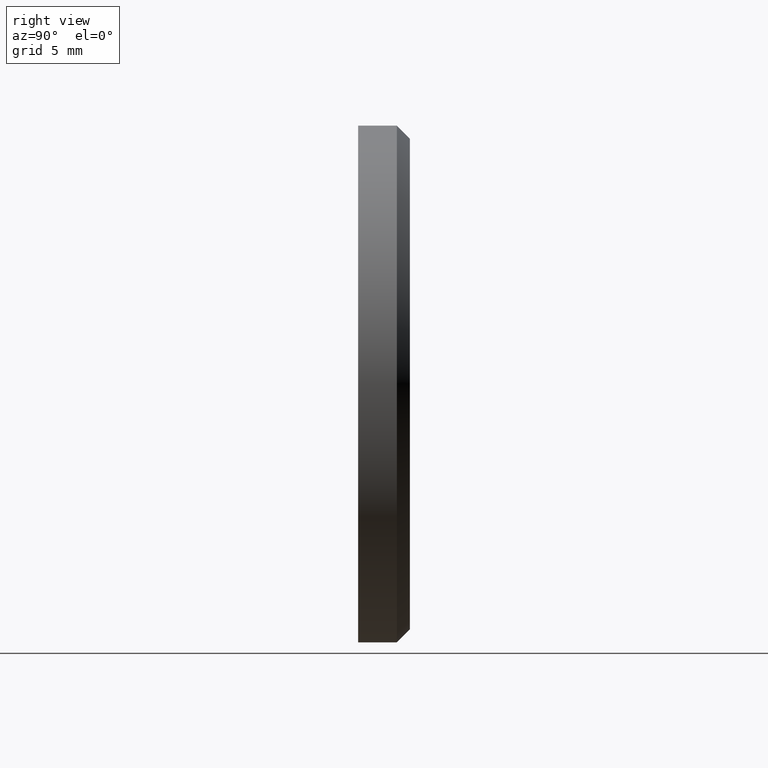
[diagram: clean part render]
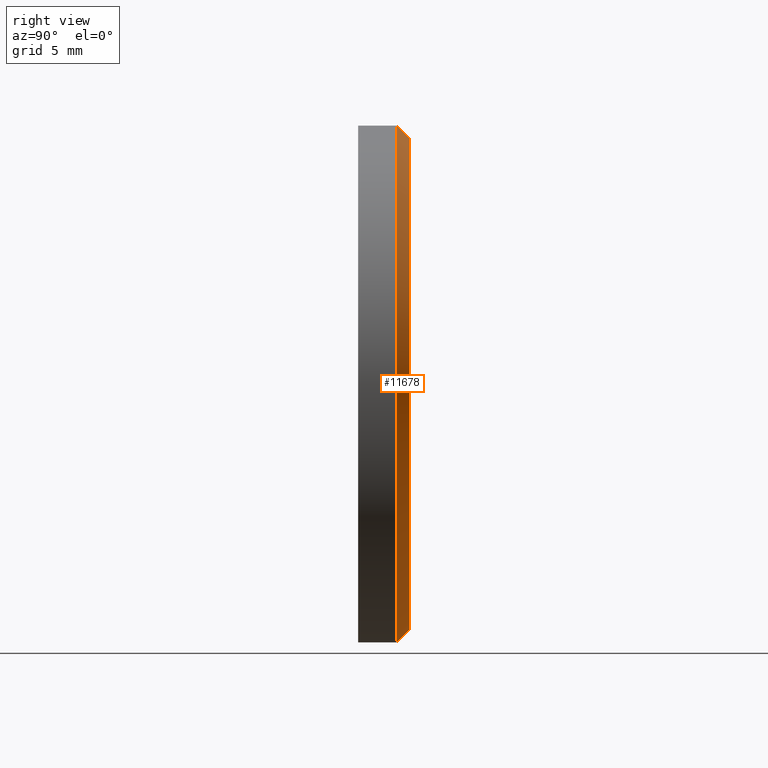
[diagram: same view with one face highlighted and labeled with its STEP entity id]
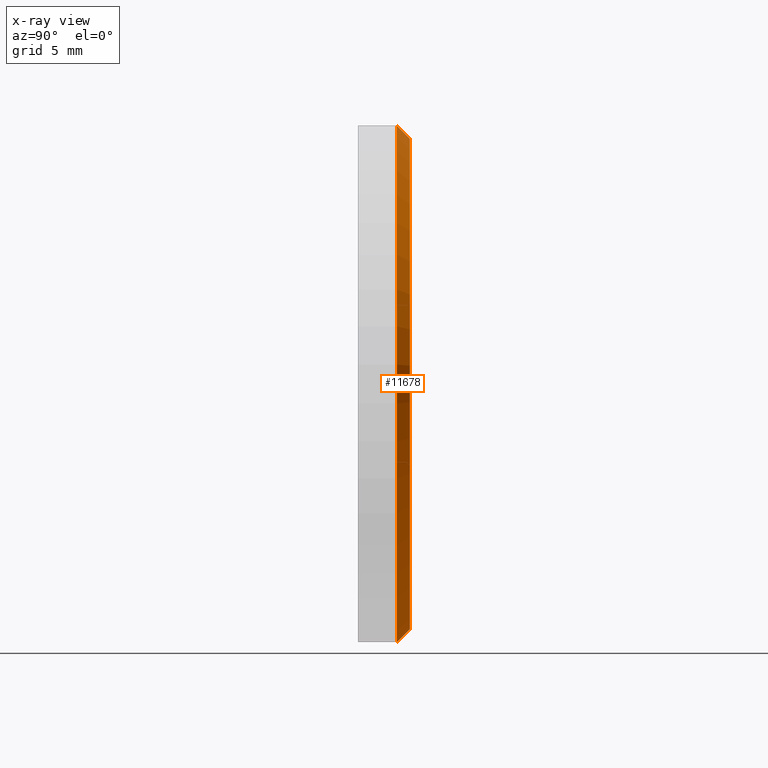
[diagram: x-ray of the same camera — body ghosted, the highlighted face saturated]
A machine part, right view. The second image highlights one B-rep face of the part: STEP entity #11678.
The next image is the same camera in x-ray: the body ghosted, the highlighted face saturated — about 0% of this face is hidden behind the body in this view.
In plain terms, the highlighted conical surface has half-angle 45 deg.
Its self-contained STEP definition (entity closure, byte-faithful):
#1484 = EDGE_CURVE ( 'NONE', #6207, #3976, #10006, .T. ) ;
#1502 = DIRECTION ( 'NONE',  ( 8.659560562354904508E-17, -0.7071067811865500152, 0.7071067811865451302 ) ) ;
#1595 = CARTESIAN_POINT ( 'NONE',  ( 0.000000000000000000, 4.000000000000000000, -19.00000000000001066 ) ) ;
#3976 = VERTEX_POINT ( 'NONE', #12292 ) ;
#4174 = ORIENTED_EDGE ( 'NONE', *, *, #13408, .F. ) ;
#4951 = ORIENTED_EDGE ( 'NONE', *, *, #13900, .F. ) ;
#5724 = DIRECTION ( 'NONE',  ( 0.000000000000000000, -1.000000000000000000, 0.000000000000000000 ) ) ;
#5757 = VECTOR ( 'NONE', #11580, 1000.000000000000114 ) ;
#5774 = AXIS2_PLACEMENT_3D ( 'NONE', #11754, #8324, #11701 ) ;
#5888 = DIRECTION ( 'NONE',  ( 0.000000000000000000, -1.000000000000000000, 0.000000000000000000 ) ) ;
#5932 = CARTESIAN_POINT ( 'NONE',  ( 0.000000000000000000, 3.000000000000002665, 0.000000000000000000 ) ) ;
#6029 = DIRECTION ( 'NONE',  ( 0.000000000000000000, 0.000000000000000000, 1.000000000000000000 ) ) ;
#6207 = VERTEX_POINT ( 'NONE', #11178 ) ;
#7228 = CARTESIAN_POINT ( 'NONE',  ( 2.326828918379972548E-15, 4.000000000000000000, 19.00000000000001066 ) ) ;
#7584 = FACE_OUTER_BOUND ( 'NONE', #14071, .T. ) ;
#7962 = ORIENTED_EDGE ( 'NONE', *, *, #1484, .T. ) ;
#8324 = DIRECTION ( 'NONE',  ( 0.000000000000000000, 1.000000000000000000, 0.000000000000000000 ) ) ;
#8390 = AXIS2_PLACEMENT_3D ( 'NONE', #5932, #5888, #6029 ) ;
#9098 = VECTOR ( 'NONE', #1502, 1000.000000000000114 ) ;
#9245 = CONICAL_SURFACE ( 'NONE', #10060, 19.00000000000001066, 0.7853981633974447263 ) ;
#9380 = CIRCLE ( 'NONE', #8390, 20.00000000000000000 ) ;
#10006 = LINE ( 'NONE', #7228, #9098 ) ;
#10060 = AXIS2_PLACEMENT_3D ( 'NONE', #10515, #5724, #15040 ) ;
#10319 = CIRCLE ( 'NONE', #5774, 19.00000000000001066 ) ;
#10505 = CARTESIAN_POINT ( 'NONE',  ( 0.000000000000000000, 4.000000000000000000, -19.00000000000001066 ) ) ;
#10515 = CARTESIAN_POINT ( 'NONE',  ( 0.000000000000000000, 4.000000000000000000, 0.000000000000000000 ) ) ;
#11178 = CARTESIAN_POINT ( 'NONE',  ( 2.388061258337339728E-15, 4.000000000000000000, 19.00000000000001066 ) ) ;
#11199 = CARTESIAN_POINT ( 'NONE',  ( 0.000000000000000000, 3.000000000000002665, -20.00000000000000000 ) ) ;
#11580 = DIRECTION ( 'NONE',  ( 0.000000000000000000, -0.7071067811865500152, -0.7071067811865451302 ) ) ;
#11678 = ADVANCED_FACE ( 'NONE', ( #7584 ), #9245, .T. ) ;
#11701 = DIRECTION ( 'NONE',  ( 0.000000000000000000, 0.000000000000000000, 1.000000000000000000 ) ) ;
#11754 = CARTESIAN_POINT ( 'NONE',  ( 0.000000000000000000, 4.000000000000000000, 0.000000000000000000 ) ) ;
#11908 = VERTEX_POINT ( 'NONE', #1595 ) ;
#12292 = CARTESIAN_POINT ( 'NONE',  ( 2.449293598294706513E-15, 3.000000000000002665, 20.00000000000000000 ) ) ;
#12673 = VERTEX_POINT ( 'NONE', #11199 ) ;
#13408 = EDGE_CURVE ( 'NONE', #11908, #12673, #13613, .T. ) ;
#13454 = ORIENTED_EDGE ( 'NONE', *, *, #13845, .F. ) ;
#13613 = LINE ( 'NONE', #10505, #5757 ) ;
#13845 = EDGE_CURVE ( 'NONE', #6207, #11908, #10319, .T. ) ;
#13900 = EDGE_CURVE ( 'NONE', #12673, #3976, #9380, .T. ) ;
#14071 = EDGE_LOOP ( 'NONE', ( #13454, #7962, #4951, #4174 ) ) ;
#15040 = DIRECTION ( 'NONE',  ( 0.000000000000000000, 0.000000000000000000, -1.000000000000000000 ) ) ;